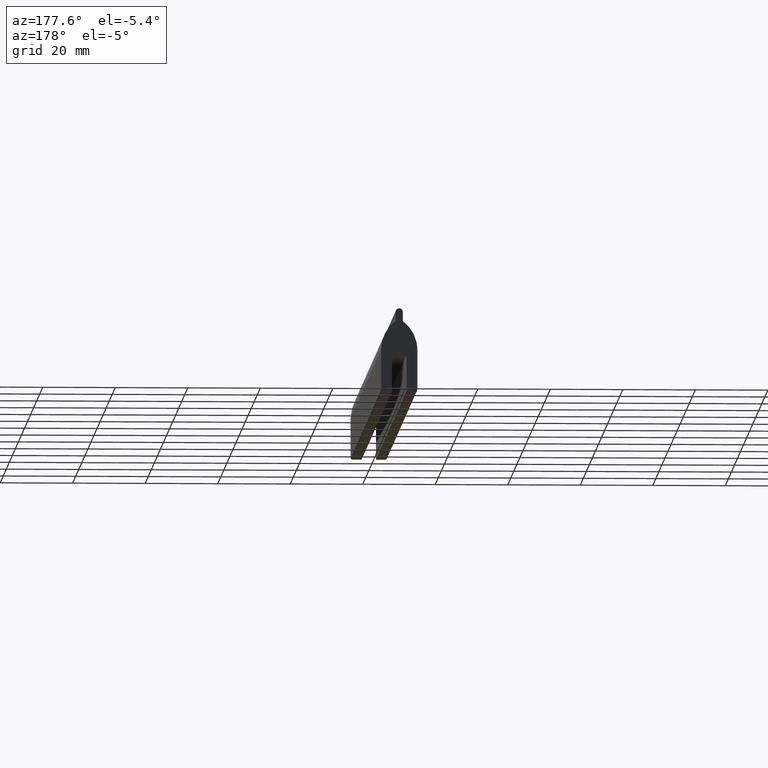
[diagram: clean part render]
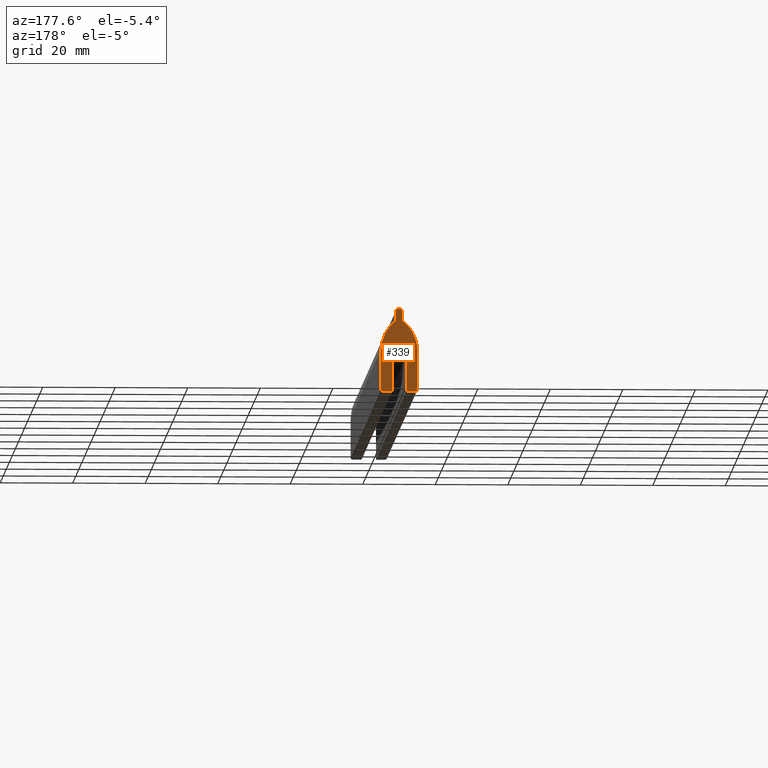
[diagram: same view with one face highlighted and labeled with its STEP entity id]
A machine part, auxiliary view. The second image highlights one B-rep face of the part: STEP entity #339.
In plain terms, the highlighted face is a freeform B-spline surface patch.
Its self-contained STEP definition (entity closure, byte-faithful):
#192=CARTESIAN_POINT('',(-5.499499980618060,200.0,1.148849955385142));
#193=CARTESIAN_POINT('',(5.499500248838961,200.0,1.148849955385142));
#194=CARTESIAN_POINT('',(-5.499499980618060,200.0,-24.148850572327881));
#195=CARTESIAN_POINT('',(5.499500248838961,200.0,-24.148850572327881));
#196=B_SPLINE_SURFACE_WITH_KNOTS('',1,1,((#192,#194),(#193,#195)),.UNSPECIFIED.,.F.,.F.,.U.,(2,2),(2,2),(0.0,10.999000229457019),(0.0,25.297700527713019),.UNSPECIFIED.);
#197=CARTESIAN_POINT('',(-0.999999999999989,200.0,-3.500000000000000));
#198=VERTEX_POINT('',#197);
#199=CARTESIAN_POINT('',(-5.0,200.0,-11.500000000000000));
#200=VERTEX_POINT('',#199);
#201=CARTESIAN_POINT('',(-0.999999999999992,200.0,-3.499999999999994));
#202=CARTESIAN_POINT('',(-5.0,200.0,-6.499999999999996));
#203=CARTESIAN_POINT('',(-5.0,200.0,-11.500000000000000));
#211=(BOUNDED_CURVE()B_SPLINE_CURVE(2,(#201,#202,#203),.UNSPECIFIED.,.F.,.U.)CURVE()GEOMETRIC_REPRESENTATION_ITEM()QUASI_UNIFORM_CURVE()RATIONAL_B_SPLINE_CURVE((1.0,0.894427190999916,1.0))REPRESENTATION_ITEM(''));
#212=EDGE_CURVE('',#198,#200,#211,.T.);
#213=ORIENTED_EDGE('',*,*,#212,.F.);
#214=CARTESIAN_POINT('',(-1.0,200.0,-1.0));
#215=VERTEX_POINT('',#214);
#216=CARTESIAN_POINT('',(-1.0,200.0,-1.0));
#217=CARTESIAN_POINT('',(-0.999999999999989,200.0,-3.500000000000000));
#218=QUASI_UNIFORM_CURVE('',1,(#216,#217),.UNSPECIFIED.,.F.,.U.);
#219=EDGE_CURVE('',#215,#198,#218,.T.);
#220=ORIENTED_EDGE('',*,*,#219,.F.);
#221=CARTESIAN_POINT('',(1.0,200.0,-1.0));
#222=VERTEX_POINT('',#221);
#223=CARTESIAN_POINT('',(1.0,200.0,-1.0));
#224=CARTESIAN_POINT('',(1.0,200.0,0.0));
#225=CARTESIAN_POINT('',(0.0,200.0,0.0));
#226=CARTESIAN_POINT('',(-1.0,200.0,0.0));
#227=CARTESIAN_POINT('',(-1.0,200.0,-1.0));
#235=(BOUNDED_CURVE()B_SPLINE_CURVE(2,(#223,#224,#225,#226,#227),.UNSPECIFIED.,.F.,.U.)B_SPLINE_CURVE_WITH_KNOTS((3,2,3),(0.0,0.500000000000000,1.0),.UNSPECIFIED.)CURVE()GEOMETRIC_REPRESENTATION_ITEM()RATIONAL_B_SPLINE_CURVE((1.0,0.707106781186548,1.0,0.707106781186548,1.0))REPRESENTATION_ITEM(''));
#236=EDGE_CURVE('',#222,#215,#235,.T.);
#237=ORIENTED_EDGE('',*,*,#236,.F.);
#238=CARTESIAN_POINT('',(1.000000049449502,200.0,-3.500000037087030));
#239=VERTEX_POINT('',#238);
#240=CARTESIAN_POINT('',(1.000000049449502,200.0,-3.500000037087030));
#241=CARTESIAN_POINT('',(1.0,200.0,-1.0));
#242=QUASI_UNIFORM_CURVE('',1,(#240,#241),.UNSPECIFIED.,.F.,.U.);
#243=EDGE_CURVE('',#239,#222,#242,.T.);
#244=ORIENTED_EDGE('',*,*,#243,.F.);
#245=CARTESIAN_POINT('',(5.0,200.0,-11.500000000000000));
#246=VERTEX_POINT('',#245);
#247=CARTESIAN_POINT('',(5.0,200.0,-11.500000000000000));
#248=CARTESIAN_POINT('',(5.0,199.999999999999940,-6.500000038632387));
#249=CARTESIAN_POINT('',(1.000000049449456,200.0,-3.500000037087092));
#257=(BOUNDED_CURVE()B_SPLINE_CURVE(2,(#247,#248,#249),.UNSPECIFIED.,.F.,.U.)CURVE()GEOMETRIC_REPRESENTATION_ITEM()QUASI_UNIFORM_CURVE()RATIONAL_B_SPLINE_CURVE((1.0,0.894427192382070,1.0))REPRESENTATION_ITEM(''));
#258=EDGE_CURVE('',#246,#239,#257,.T.);
#259=ORIENTED_EDGE('',*,*,#258,.F.);
#260=CARTESIAN_POINT('',(5.0,200.0,-22.500000000000000));
#261=VERTEX_POINT('',#260);
#262=CARTESIAN_POINT('',(5.0,200.0,-22.500000000000000));
#263=CARTESIAN_POINT('',(5.0,200.0,-11.500000000000000));
#264=QUASI_UNIFORM_CURVE('',1,(#262,#263),.UNSPECIFIED.,.F.,.U.);
#265=EDGE_CURVE('',#261,#246,#264,.T.);
#266=ORIENTED_EDGE('',*,*,#265,.F.);
#267=CARTESIAN_POINT('',(4.500000000000000,200.0,-23.0));
#268=VERTEX_POINT('',#267);
#269=CARTESIAN_POINT('',(4.500000000000000,200.0,-23.0));
#270=CARTESIAN_POINT('',(4.999999999999998,200.0,-22.999999999999993));
#271=CARTESIAN_POINT('',(4.999999999999999,200.0,-22.500000000000000));
#279=(BOUNDED_CURVE()B_SPLINE_CURVE(2,(#269,#270,#271),.UNSPECIFIED.,.F.,.U.)CURVE()GEOMETRIC_REPRESENTATION_ITEM()QUASI_UNIFORM_CURVE()RATIONAL_B_SPLINE_CURVE((1.0,0.707106781186548,1.0))REPRESENTATION_ITEM(''));
#280=EDGE_CURVE('',#268,#261,#279,.T.);
#281=ORIENTED_EDGE('',*,*,#280,.F.);
#282=CARTESIAN_POINT('',(2.0,200.0,-23.0));
#283=VERTEX_POINT('',#282);
#284=CARTESIAN_POINT('',(2.0,200.0,-23.0));
#285=CARTESIAN_POINT('',(4.500000000000000,200.0,-23.0));
#286=QUASI_UNIFORM_CURVE('',1,(#284,#285),.UNSPECIFIED.,.F.,.U.);
#287=EDGE_CURVE('',#283,#268,#286,.T.);
#288=ORIENTED_EDGE('',*,*,#287,.F.);
#289=CARTESIAN_POINT('',(2.0,200.0,-13.0));
#290=VERTEX_POINT('',#289);
#291=CARTESIAN_POINT('',(2.0,200.0,-13.0));
#292=CARTESIAN_POINT('',(2.0,200.0,-23.0));
#293=QUASI_UNIFORM_CURVE('',1,(#291,#292),.UNSPECIFIED.,.F.,.U.);
#294=EDGE_CURVE('',#290,#283,#293,.T.);
#295=ORIENTED_EDGE('',*,*,#294,.F.);
#296=CARTESIAN_POINT('',(-2.0,200.0,-13.0));
#297=VERTEX_POINT('',#296);
#298=CARTESIAN_POINT('',(-2.0,200.0,-13.0));
#299=CARTESIAN_POINT('',(2.0,200.0,-13.0));
#300=QUASI_UNIFORM_CURVE('',1,(#298,#299),.UNSPECIFIED.,.F.,.U.);
#301=EDGE_CURVE('',#297,#290,#300,.T.);
#302=ORIENTED_EDGE('',*,*,#301,.F.);
#303=CARTESIAN_POINT('',(-2.0,200.0,-23.0));
#304=VERTEX_POINT('',#303);
#305=CARTESIAN_POINT('',(-2.0,200.0,-23.0));
#306=CARTESIAN_POINT('',(-2.0,200.0,-13.0));
#307=QUASI_UNIFORM_CURVE('',1,(#305,#306),.UNSPECIFIED.,.F.,.U.);
#308=EDGE_CURVE('',#304,#297,#307,.T.);
#309=ORIENTED_EDGE('',*,*,#308,.F.);
#310=CARTESIAN_POINT('',(-4.500000000000000,200.0,-23.0));
#311=VERTEX_POINT('',#310);
#312=CARTESIAN_POINT('',(-4.500000000000000,200.0,-23.0));
#313=CARTESIAN_POINT('',(-2.0,200.0,-23.0));
#314=QUASI_UNIFORM_CURVE('',1,(#312,#313),.UNSPECIFIED.,.F.,.U.);
#315=EDGE_CURVE('',#311,#304,#314,.T.);
#316=ORIENTED_EDGE('',*,*,#315,.F.);
#317=CARTESIAN_POINT('',(-5.0,200.0,-22.500000000000000));
#318=VERTEX_POINT('',#317);
#319=CARTESIAN_POINT('',(-4.999999999999999,200.0,-22.500000000000000));
#320=CARTESIAN_POINT('',(-4.999999999999998,200.0,-22.999999999999993));
#321=CARTESIAN_POINT('',(-4.500000000000000,200.0,-23.0));
#329=(BOUNDED_CURVE()B_SPLINE_CURVE(2,(#319,#320,#321),.UNSPECIFIED.,.F.,.U.)CURVE()GEOMETRIC_REPRESENTATION_ITEM()QUASI_UNIFORM_CURVE()RATIONAL_B_SPLINE_CURVE((1.0,0.707106781186548,1.0))REPRESENTATION_ITEM(''));
#330=EDGE_CURVE('',#318,#311,#329,.T.);
#331=ORIENTED_EDGE('',*,*,#330,.F.);
#332=CARTESIAN_POINT('',(-5.0,200.0,-11.500000000000000));
#333=CARTESIAN_POINT('',(-5.0,200.0,-22.500000000000000));
#334=QUASI_UNIFORM_CURVE('',1,(#332,#333),.UNSPECIFIED.,.F.,.U.);
#335=EDGE_CURVE('',#200,#318,#334,.T.);
#336=ORIENTED_EDGE('',*,*,#335,.F.);
#337=EDGE_LOOP('',(#213,#220,#237,#244,#259,#266,#281,#288,#295,#302,#309,#316,#331,#336));
#338=FACE_OUTER_BOUND('',#337,.T.);
#339=ADVANCED_FACE('',(#338),#196,.T.);